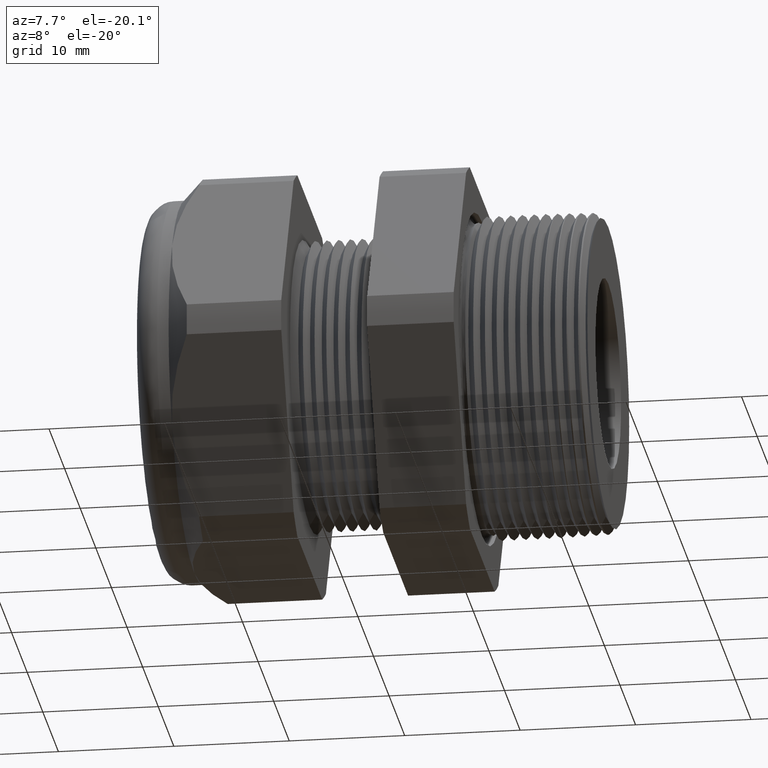
[diagram: clean part render]
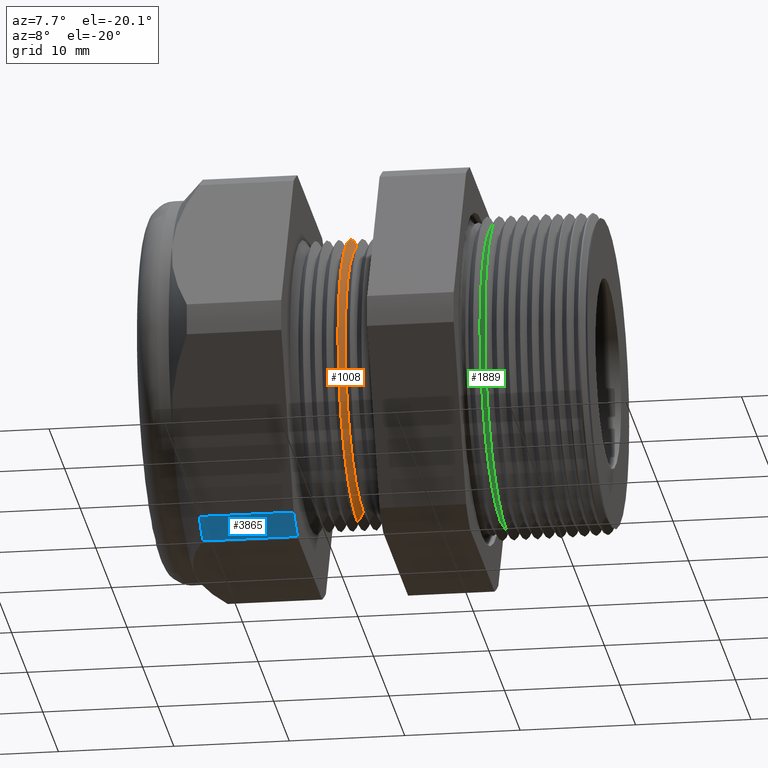
[diagram: same view with three faces highlighted in distinct colors, each labeled with its STEP entity id]
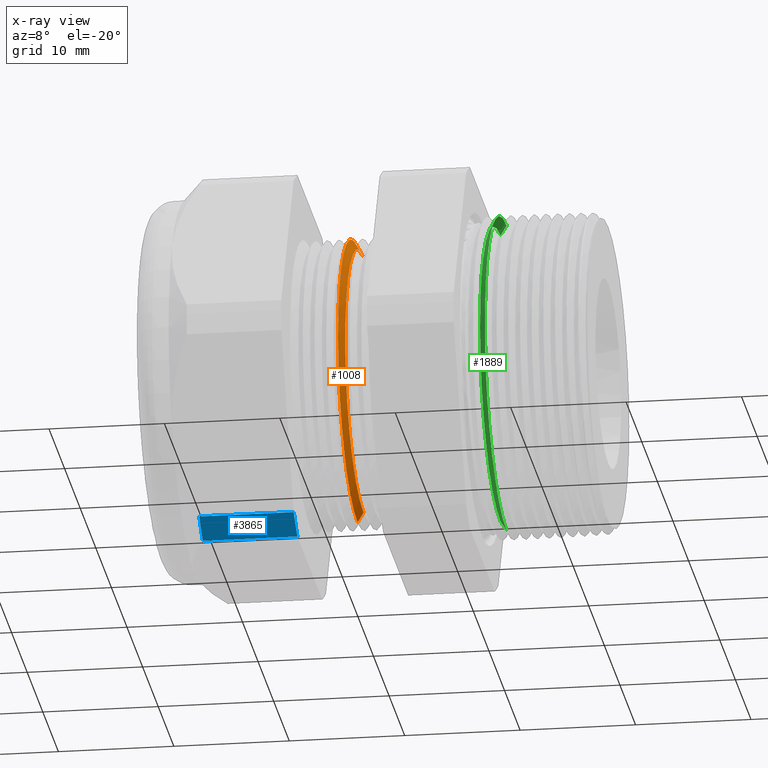
[diagram: x-ray of the same camera — body ghosted, the three highlighted faces saturated]
A machine part, auxiliary view with three faces highlighted in distinct colors.
The next image is the same camera in x-ray (body ghosted, the three faces saturated) — at least one of them is partly hidden behind the body in this view.
Their STEP definitions:

[orange] entity #1008 — the highlighted conical surface has half-angle 60 deg.
#150 = DIRECTION ( 'NONE',  ( -0.4999999999999943400, 1.060575238724910900E-016, -0.8660254037844418200 ) ) ;
#151 = VECTOR ( 'NONE', #150, 39.37007874015748100 ) ;
#152 = CARTESIAN_POINT ( 'NONE',  ( -0.7381889763779526700, 6.117110761741028700E-017, -0.4994999999999999400 ) ) ;
#153 = LINE ( 'NONE', #152, #151 ) ;
#186 = LINE ( 'NONE', #247, #246 ) ;
#212 = CARTESIAN_POINT ( 'NONE',  ( -0.7150949656103680100, 0.0000000000000000000, 0.4595000000000000200 ) ) ;
#245 = DIRECTION ( 'NONE',  ( -0.4999999999999943400, 0.0000000000000000000, 0.8660254037844418200 ) ) ;
#246 = VECTOR ( 'NONE', #245, 39.37007874015748100 ) ;
#247 = CARTESIAN_POINT ( 'NONE',  ( -0.7381889763779526700, 0.0000000000000000000, 0.4994999999999999400 ) ) ;
#1008 = ADVANCED_FACE ( 'NONE', ( #2078 ), #2073, .T. ) ;
#1009 = EDGE_CURVE ( 'NONE', #3547, #3549, #2066, .T. ) ;
#1014 = ORIENTED_EDGE ( 'NONE', *, *, #3579, .F. ) ;
#1033 = EDGE_LOOP ( 'NONE', ( #1014, #3732, #1691, #1721 ) ) ;
#1691 = ORIENTED_EDGE ( 'NONE', *, *, #3641, .T. ) ;
#1721 = ORIENTED_EDGE ( 'NONE', *, *, #1009, .F. ) ;
#1730 = EDGE_CURVE ( 'NONE', #3623, #3573, #2964, .T. ) ;
#2063 = DIRECTION ( 'NONE',  ( 0.0000000000000000000, 0.0000000000000000000, 1.000000000000000000 ) ) ;
#2064 = DIRECTION ( 'NONE',  ( -1.000000000000000000, 0.0000000000000000000, 0.0000000000000000000 ) ) ;
#2065 = AXIS2_PLACEMENT_3D ( 'NONE', #2072, #2064, #2063 ) ;
#2066 = CIRCLE ( 'NONE', #2065, 0.4941410161513776800 ) ;
#2068 = DIRECTION ( 'NONE',  ( 0.0000000000000000000, 0.0000000000000000000, 1.000000000000000000 ) ) ;
#2069 = DIRECTION ( 'NONE',  ( -1.000000000000000000, 0.0000000000000000000, 0.0000000000000000000 ) ) ;
#2070 = CARTESIAN_POINT ( 'NONE',  ( -0.7381889763779526700, 0.0000000000000000000, 0.0000000000000000000 ) ) ;
#2071 = AXIS2_PLACEMENT_3D ( 'NONE', #2070, #2069, #2068 ) ;
#2072 = CARTESIAN_POINT ( 'NONE',  ( -0.7350949656103678000, 0.0000000000000000000, 0.0000000000000000000 ) ) ;
#2073 = CONICAL_SURFACE ( 'NONE', #2071, 0.4994999999999999400, 1.047197551196604300 ) ;
#2078 = FACE_OUTER_BOUND ( 'NONE', #1033, .T. ) ;
#2960 = DIRECTION ( 'NONE',  ( 0.0000000000000000000, 0.0000000000000000000, -1.000000000000000000 ) ) ;
#2961 = DIRECTION ( 'NONE',  ( 1.000000000000000000, 0.0000000000000000000, 0.0000000000000000000 ) ) ;
#2962 = CARTESIAN_POINT ( 'NONE',  ( -0.7150949656103680100, 0.0000000000000000000, 0.0000000000000000000 ) ) ;
#2963 = AXIS2_PLACEMENT_3D ( 'NONE', #2962, #2961, #2960 ) ;
#2964 = CIRCLE ( 'NONE', #2963, 0.4595000000000000200 ) ;
#3390 = CARTESIAN_POINT ( 'NONE',  ( -0.7350949656103678000, 6.051482137572053200E-017, 0.4941410161513777300 ) ) ;
#3391 = CARTESIAN_POINT ( 'NONE',  ( -0.7350949656103678000, 0.0000000000000000000, -0.4941410161513777300 ) ) ;
#3470 = CARTESIAN_POINT ( 'NONE',  ( -0.7150949656103680100, 5.839367089827070200E-017, -0.4595000000000000200 ) ) ;
#3547 = VERTEX_POINT ( 'NONE', #3391 ) ;
#3549 = VERTEX_POINT ( 'NONE', #3390 ) ;
#3573 = VERTEX_POINT ( 'NONE', #3470 ) ;
#3579 = EDGE_CURVE ( 'NONE', #3573, #3547, #153, .T. ) ;
#3623 = VERTEX_POINT ( 'NONE', #212 ) ;
#3641 = EDGE_CURVE ( 'NONE', #3623, #3549, #186, .T. ) ;
#3732 = ORIENTED_EDGE ( 'NONE', *, *, #1730, .F. ) ;

[blue] entity #3865 — the highlighted cylindrical surface (partial cylindrical patch) has radius 18.3261 mm, axis along (-1, 0, 0).
#590 = CARTESIAN_POINT ( 'NONE',  ( -0.8981889763779525900, -0.3131489262315934100, -0.6500000000000001300 ) ) ;
#591 = DIRECTION ( 'NONE',  ( -1.000000000000000000, 0.0000000000000000000, 0.0000000000000000000 ) ) ;
#592 = VECTOR ( 'NONE', #591, 39.37007874015748100 ) ;
#593 = CARTESIAN_POINT ( 'NONE',  ( 0.1200000000000000900, -0.3131489262315934100, -0.6500000000000001300 ) ) ;
#594 = LINE ( 'NONE', #593, #592 ) ;
#601 = DIRECTION ( 'NONE',  ( 0.0000000000000000000, 0.0000000000000000000, -1.000000000000000000 ) ) ;
#602 = DIRECTION ( 'NONE',  ( 1.000000000000000000, 0.0000000000000000000, 0.0000000000000000000 ) ) ;
#603 = CARTESIAN_POINT ( 'NONE',  ( -0.8981889763779525900, 0.0000000000000000000, 0.0000000000000000000 ) ) ;
#604 = AXIS2_PLACEMENT_3D ( 'NONE', #603, #602, #601 ) ;
#607 = CIRCLE ( 'NONE', #604, 0.7215000000000000300 ) ;
#620 = DIRECTION ( 'NONE',  ( 0.0000000000000000000, 0.0000000000000000000, -1.000000000000000000 ) ) ;
#621 = DIRECTION ( 'NONE',  ( 1.000000000000000000, 0.0000000000000000000, 0.0000000000000000000 ) ) ;
#622 = CARTESIAN_POINT ( 'NONE',  ( -1.220389763779527600, 0.0000000000000000000, 0.0000000000000000000 ) ) ;
#631 = CIRCLE ( 'NONE', #633, 0.7215000000000000300 ) ;
#633 = AXIS2_PLACEMENT_3D ( 'NONE', #622, #621, #620 ) ;
#645 = CARTESIAN_POINT ( 'NONE',  ( -1.220389763779527600, -0.3131489262315934100, -0.6500000000000001300 ) ) ;
#657 = CARTESIAN_POINT ( 'NONE',  ( -0.8981889763779525900, -0.4063420493440881300, -0.5961949252843793400 ) ) ;
#662 = CARTESIAN_POINT ( 'NONE',  ( -1.220389763779527600, -0.4063420493440881300, -0.5961949252843793400 ) ) ;
#663 = DIRECTION ( 'NONE',  ( -1.000000000000000000, 0.0000000000000000000, 0.0000000000000000000 ) ) ;
#664 = VECTOR ( 'NONE', #663, 39.37007874015748100 ) ;
#665 = CARTESIAN_POINT ( 'NONE',  ( 0.1200000000000000900, -0.4063420493440881300, -0.5961949252843793400 ) ) ;
#666 = LINE ( 'NONE', #665, #664 ) ;
#667 = DIRECTION ( 'NONE',  ( 0.0000000000000000000, 0.0000000000000000000, 1.000000000000000000 ) ) ;
#668 = DIRECTION ( 'NONE',  ( -1.000000000000000000, 0.0000000000000000000, 0.0000000000000000000 ) ) ;
#669 = CARTESIAN_POINT ( 'NONE',  ( 0.1200000000000000900, 0.0000000000000000000, 0.0000000000000000000 ) ) ;
#670 = AXIS2_PLACEMENT_3D ( 'NONE', #669, #668, #667 ) ;
#671 = CYLINDRICAL_SURFACE ( 'NONE', #670, 0.7215000000000000300 ) ;
#672 = FACE_OUTER_BOUND ( 'NONE', #3863, .T. ) ;
#3840 = ORIENTED_EDGE ( 'NONE', *, *, #3860, .T. ) ;
#3843 = EDGE_CURVE ( 'NONE', #3871, #3852, #607, .T. ) ;
#3844 = ORIENTED_EDGE ( 'NONE', *, *, #3843, .F. ) ;
#3849 = ORIENTED_EDGE ( 'NONE', *, *, #3850, .F. ) ;
#3850 = EDGE_CURVE ( 'NONE', #3852, #3858, #594, .T. ) ;
#3852 = VERTEX_POINT ( 'NONE', #590 ) ;
#3858 = VERTEX_POINT ( 'NONE', #645 ) ;
#3860 = EDGE_CURVE ( 'NONE', #3869, #3858, #631, .T. ) ;
#3862 = ORIENTED_EDGE ( 'NONE', *, *, #3868, .T. ) ;
#3863 = EDGE_LOOP ( 'NONE', ( #3862, #3840, #3849, #3844 ) ) ;
#3865 = ADVANCED_FACE ( 'NONE', ( #672 ), #671, .T. ) ;
#3868 = EDGE_CURVE ( 'NONE', #3871, #3869, #666, .T. ) ;
#3869 = VERTEX_POINT ( 'NONE', #662 ) ;
#3871 = VERTEX_POINT ( 'NONE', #657 ) ;

[green] entity #1889 — the highlighted conical surface has half-angle 58.5 deg.
#1657 = VERTEX_POINT ( 'NONE', #2833 ) ;
#1668 = EDGE_CURVE ( 'NONE', #1657, #1782, #2813, .T. ) ;
#1683 = EDGE_CURVE ( 'NONE', #1756, #1791, #2855, .T. ) ;
#1756 = VERTEX_POINT ( 'NONE', #2968 ) ;
#1782 = VERTEX_POINT ( 'NONE', #3058 ) ;
#1791 = VERTEX_POINT ( 'NONE', #3042 ) ;
#1830 = EDGE_CURVE ( 'NONE', #1782, #1791, #3103, .T. ) ;
#1858 = EDGE_CURVE ( 'NONE', #1756, #1657, #3173, .T. ) ;
#1883 = EDGE_LOOP ( 'NONE', ( #1893, #1895, #1911, #1912 ) ) ;
#1889 = ADVANCED_FACE ( 'NONE', ( #3193 ), #2674, .T. ) ;
#1893 = ORIENTED_EDGE ( 'NONE', *, *, #1683, .F. ) ;
#1895 = ORIENTED_EDGE ( 'NONE', *, *, #1858, .T. ) ;
#1911 = ORIENTED_EDGE ( 'NONE', *, *, #1668, .T. ) ;
#1912 = ORIENTED_EDGE ( 'NONE', *, *, #1830, .T. ) ;
#2674 = CONICAL_SURFACE ( 'NONE', #2938, 0.5144091762748934600, 1.021017612416686300 ) ;
#2810 = DIRECTION ( 'NONE',  ( 0.5224985647159459100, 0.0000000000000000000, -0.8526401643540939500 ) ) ;
#2811 = VECTOR ( 'NONE', #2810, 39.37007874015748100 ) ;
#2812 = CARTESIAN_POINT ( 'NONE',  ( -0.2479609809054343400, 0.0000000000000000000, -0.5144091762748934600 ) ) ;
#2813 = LINE ( 'NONE', #2812, #2811 ) ;
#2833 = CARTESIAN_POINT ( 'NONE',  ( -0.2479609809054343400, 6.511616761981754200E-017, -0.5144091762748934600 ) ) ;
#2851 = DIRECTION ( 'NONE',  ( 0.5224985647159459100, 1.044183048100714500E-016, 0.8526401643540939500 ) ) ;
#2852 = VECTOR ( 'NONE', #2851, 39.37007874015748100 ) ;
#2854 = CARTESIAN_POINT ( 'NONE',  ( -0.2479609809054343400, 6.299695511770748300E-017, 0.5144091762748934600 ) ) ;
#2855 = LINE ( 'NONE', #2854, #2852 ) ;
#2938 = AXIS2_PLACEMENT_3D ( 'NONE', #3197, #3192, #3191 ) ;
#2968 = CARTESIAN_POINT ( 'NONE',  ( -0.2479609809054343400, 0.0000000000000000000, 0.5144091762748934600 ) ) ;
#3042 = CARTESIAN_POINT ( 'NONE',  ( -0.2267523337684279100, 6.723538012192760100E-017, 0.5490185428871368100 ) ) ;
#3058 = CARTESIAN_POINT ( 'NONE',  ( -0.2267523337684279100, 0.0000000000000000000, -0.5490185428871368100 ) ) ;
#3099 = DIRECTION ( 'NONE',  ( 0.0000000000000000000, 0.0000000000000000000, 1.000000000000000000 ) ) ;
#3100 = DIRECTION ( 'NONE',  ( -1.000000000000000000, 0.0000000000000000000, 0.0000000000000000000 ) ) ;
#3101 = CARTESIAN_POINT ( 'NONE',  ( -0.2267523337684279100, 0.0000000000000000000, 0.0000000000000000000 ) ) ;
#3102 = AXIS2_PLACEMENT_3D ( 'NONE', #3101, #3100, #3099 ) ;
#3103 = CIRCLE ( 'NONE', #3102, 0.5490185428871368100 ) ;
#3169 = DIRECTION ( 'NONE',  ( 0.0000000000000000000, 0.0000000000000000000, -1.000000000000000000 ) ) ;
#3170 = DIRECTION ( 'NONE',  ( 1.000000000000000000, 0.0000000000000000000, 0.0000000000000000000 ) ) ;
#3171 = CARTESIAN_POINT ( 'NONE',  ( -0.2479609809054343400, 0.0000000000000000000, 0.0000000000000000000 ) ) ;
#3172 = AXIS2_PLACEMENT_3D ( 'NONE', #3171, #3170, #3169 ) ;
#3173 = CIRCLE ( 'NONE', #3172, 0.5144091762748934600 ) ;
#3191 = DIRECTION ( 'NONE',  ( 0.0000000000000000000, 0.0000000000000000000, -1.000000000000000000 ) ) ;
#3192 = DIRECTION ( 'NONE',  ( 1.000000000000000000, 0.0000000000000000000, 0.0000000000000000000 ) ) ;
#3193 = FACE_OUTER_BOUND ( 'NONE', #1883, .T. ) ;
#3197 = CARTESIAN_POINT ( 'NONE',  ( -0.2479609809054343400, 0.0000000000000000000, 0.0000000000000000000 ) ) ;